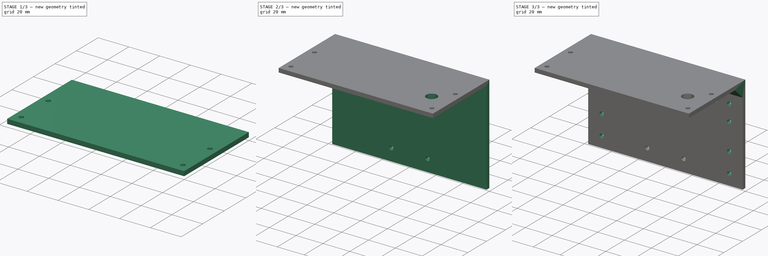
[diagram: build sequence overview — one tinted view per stage of 3, left to right]
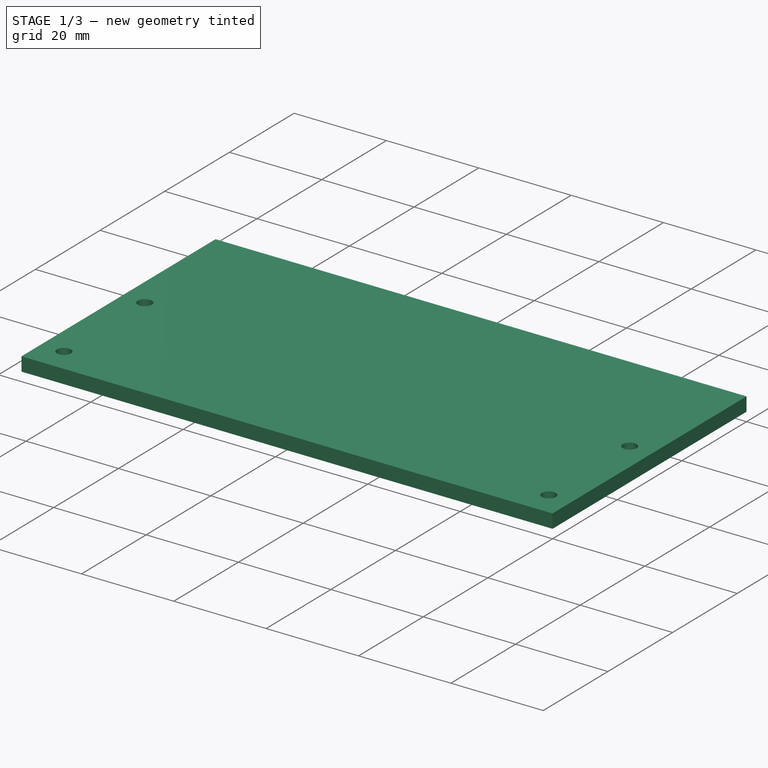
[diagram: stage 1 of 3 — iso view after this stage's code; geometry added in this stage tinted green]
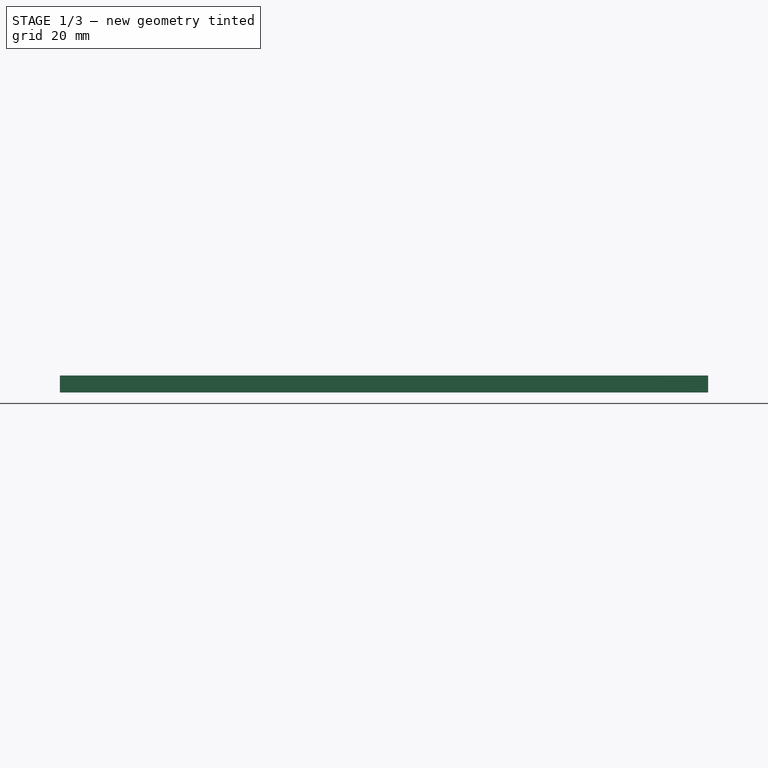
[diagram: stage 1 of 3 — front view after this stage's code; geometry added in this stage tinted green]
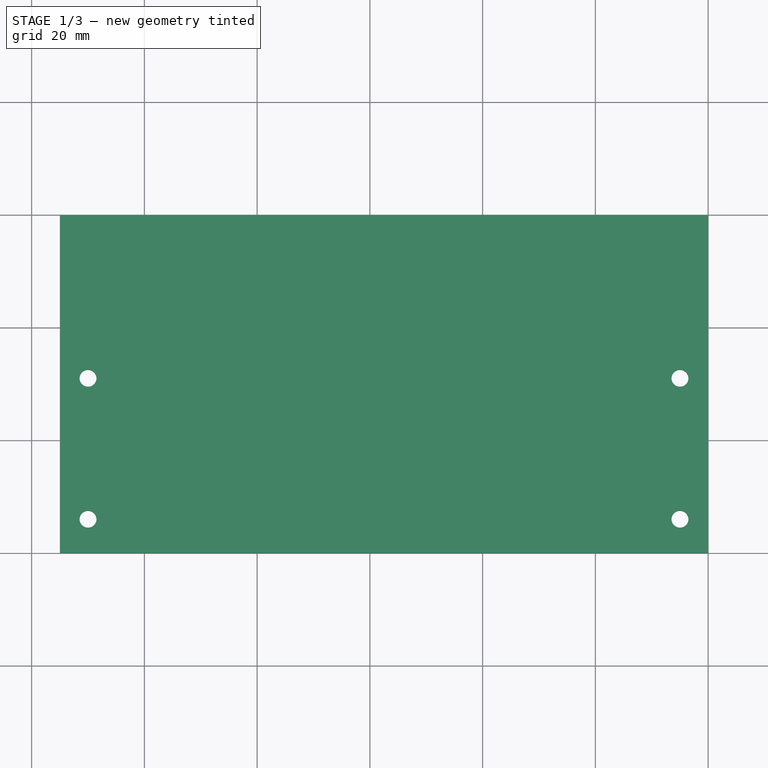
[diagram: stage 1 of 3 — top view after this stage's code; geometry added in this stage tinted green]
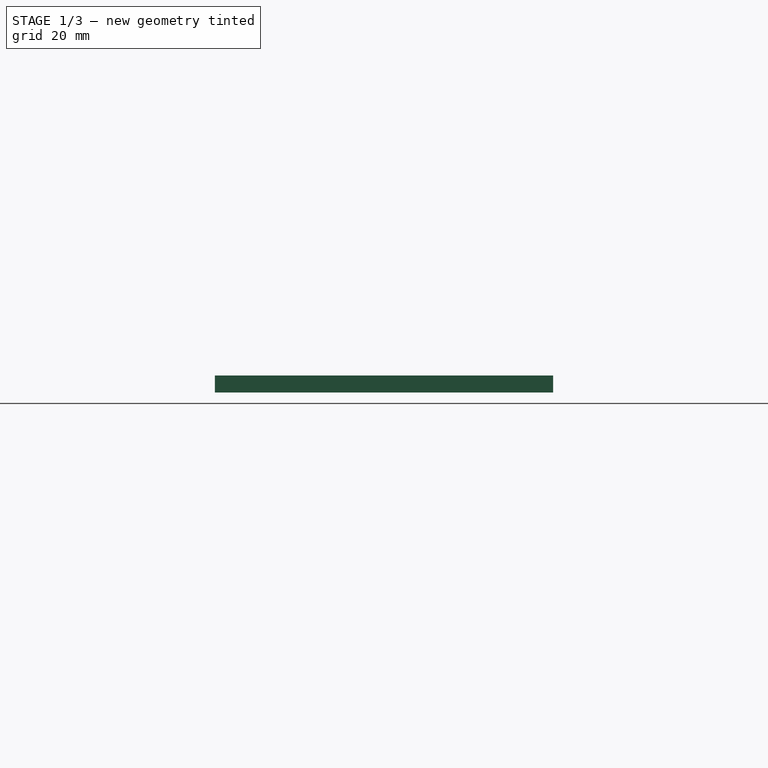
[diagram: stage 1 of 3 — right view after this stage's code; geometry added in this stage tinted green]
FCSTD DOCUMENT  (FreeCAD 0.16R6706 (Git))
Label: iROB-EA_ModuloPrincipal_Frontal
License: All rights reserved
LicenseURL: http://en.wikipedia.org/wiki/All_rights_reserved
objects: Sketcher::SketchObject×7, PartDesign::Pocket×4, PartDesign::Pad×3
note: 21 computed .brp shape members not serialized (recipe doc carries the construction recipe); baked Part::Feature solids carry a one-line shape summary decoded from their .brp

FEATURE [Sketcher::SketchObject] Sketch
  sketch-geometry (4):
    g0: LineSegment StartX=0 StartY=60 StartZ=0 EndX=-115 EndY=60 EndZ=0
    g1: LineSegment StartX=-115 StartY=60 StartZ=0 EndX=-115 EndY=0 EndZ=0
    g2: LineSegment StartX=-115 StartY=0 StartZ=0 EndX=0 EndY=0 EndZ=0
    g3: LineSegment StartX=0 StartY=0 StartZ=0 EndX=0 EndY=60 EndZ=0
  constraints (11):
    c: Coincident(g0,g1)
    c: Coincident(g1,g2)
    c: Coincident(g2,g3)
    c: Coincident(g3,g0)
    c: Horizontal(g0)
    c: Horizontal(g2)
    c: Vertical(g1)
    c: Vertical(g3)
    c: Coincident(g2,g-1)
    c: DistanceX(g2,g2) = 115
    c: DistanceY(g3,g3) = 60
FEATURE [PartDesign::Pad] Pad
  Length = 3
  Length2 = 100
  Sketch = -> Sketch
  Type = 0
FEATURE [Sketcher::SketchObject] Sketch001
  Placement = pos=(0,0,3) rot=(0,0,1;0rad)
  Support = -> Pad [Face6]
  sketch-geometry (4):
    g0: Circle CenterX=-5 CenterY=31 CenterZ=0 NormalX=0 NormalY=0 NormalZ=1 Radius=1.5
    g1: Circle CenterX=-110 CenterY=31 CenterZ=0 NormalX=0 NormalY=0 NormalZ=1 Radius=1.5
    g2: Circle CenterX=-110 CenterY=6 CenterZ=0 NormalX=0 NormalY=0 NormalZ=1 Radius=1.5
    g3: Circle CenterX=-5 CenterY=6 CenterZ=0 NormalX=0 NormalY=0 NormalZ=1 Radius=1.5
  constraints (12):
    c: Radius(g0) = 1.5
    c: Radius(g1) = 1.5
    c: DistanceX(g1,g0) = 105
    c: DistanceY(g0,g1) = 0
    c: Radius(g2) = 1.5
    c: DistanceX(g1,g2) = 0
    c: Radius(g3) = 1.5
    c: DistanceX(g3,g0) = 0
    c: DistanceY(g2,g3) = 0
    c: DistanceY(g2,g1) = 25
    c: DistanceY(g-1,g0) = 31
    c: DistanceX(g3,g-1) = 5
FEATURE [PartDesign::Pocket] Pocket
  Length = 5
  Sketch = -> Sketch001
  Type = 0
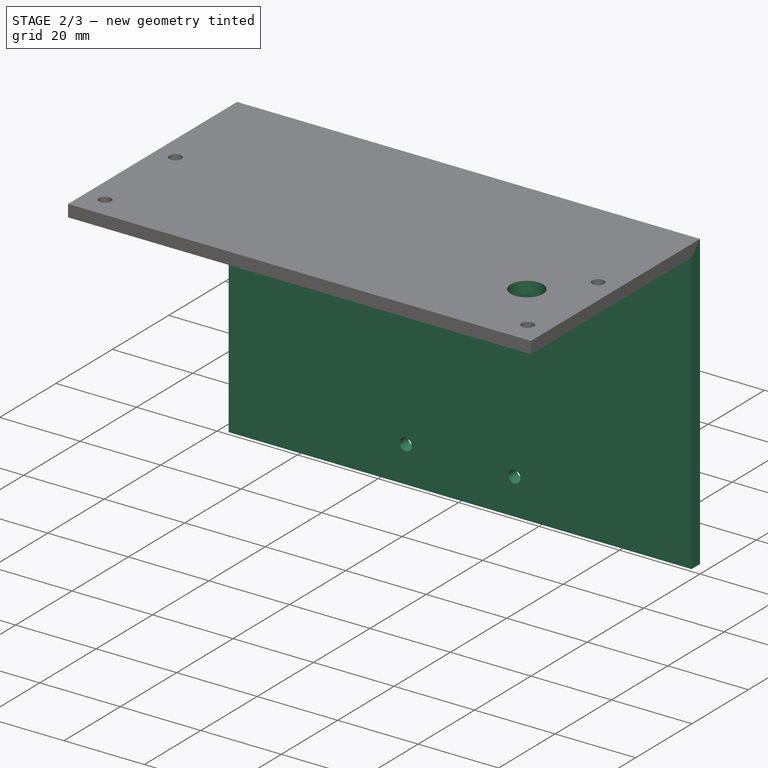
[diagram: stage 2 of 3 — iso view after this stage's code; geometry added in this stage tinted green]
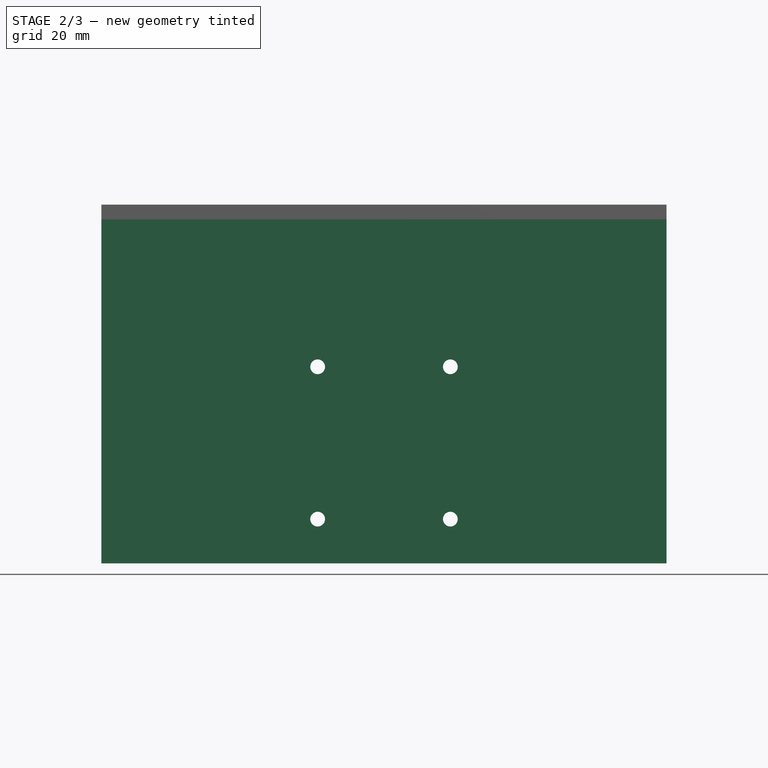
[diagram: stage 2 of 3 — front view after this stage's code; geometry added in this stage tinted green]
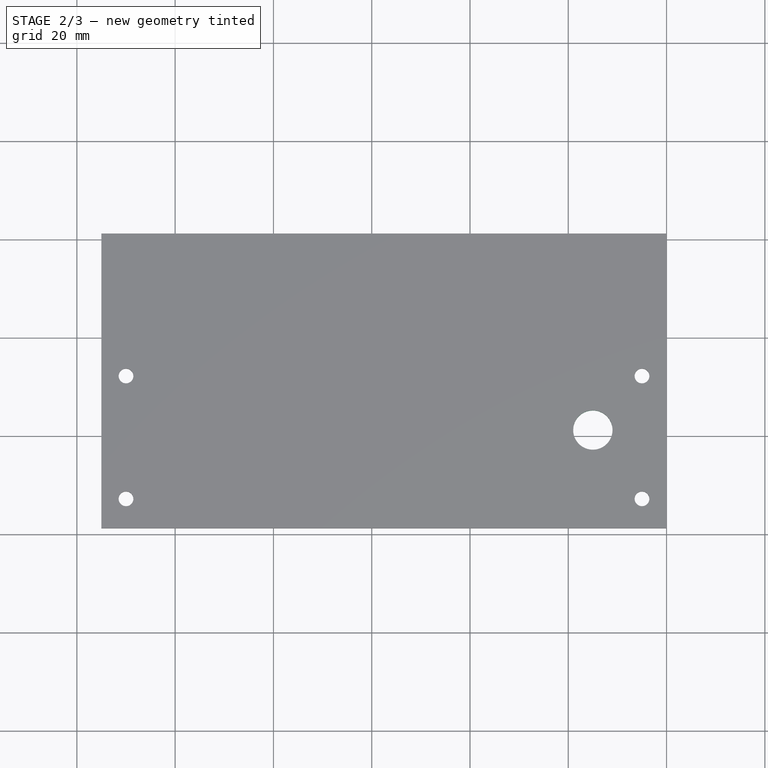
[diagram: stage 2 of 3 — top view after this stage's code; geometry added in this stage tinted green]
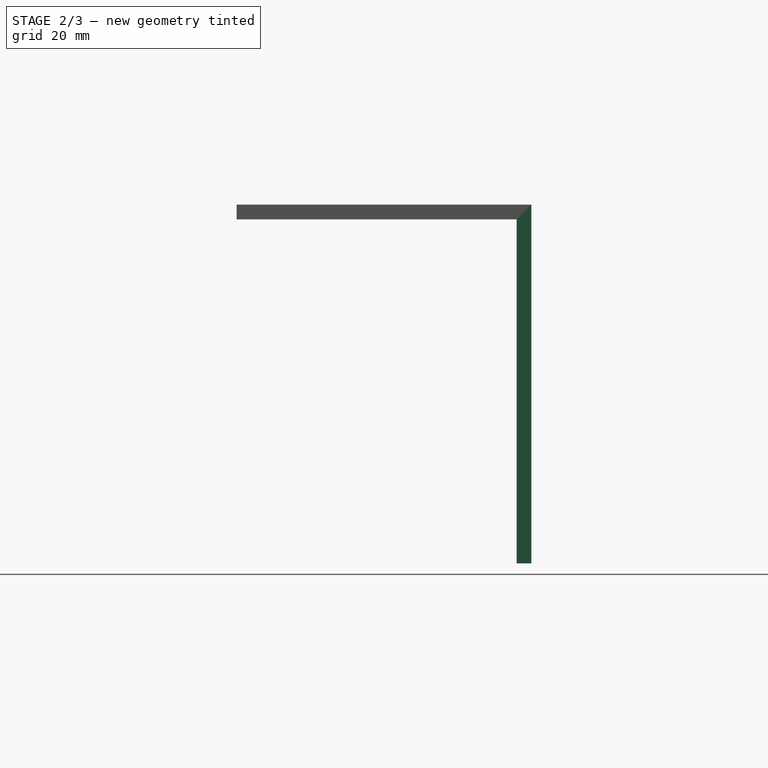
[diagram: stage 2 of 3 — right view after this stage's code; geometry added in this stage tinted green]
FEATURE [Sketcher::SketchObject] Sketch002
  Placement = pos=(0,0,3) rot=(0,0,1;0rad)
  Support = -> Pocket [Face5]
  sketch-geometry (1):
    g0: Circle CenterX=-15 CenterY=20 CenterZ=0 NormalX=0 NormalY=0 NormalZ=1 Radius=4
  constraints (3):
    c: Radius(g0) = 4
    c: DistanceY(g-1,g0) = 20
    c: DistanceX(g0,g-1) = 15
FEATURE [PartDesign::Pocket] Pocket001
  Length = 5
  Sketch = -> Sketch002
  Type = 0
FEATURE [Sketcher::SketchObject] Sketch003
  Placement = pos=(0,0,0) rot=(1,0,0;3.14159rad)
  Support = -> Pocket001 [Face4]
  sketch-geometry (4):
    g0: LineSegment StartX=-115 StartY=-57 StartZ=0 EndX=0 EndY=-57 EndZ=0
    g1: LineSegment StartX=0 StartY=-57 StartZ=0 EndX=0 EndY=-60 EndZ=0
    g2: LineSegment StartX=0 StartY=-60 StartZ=0 EndX=-115 EndY=-60 EndZ=0
    g3: LineSegment StartX=-115 StartY=-60 StartZ=0 EndX=-115 EndY=-57 EndZ=0
  constraints (12):
    c: Coincident(g0,g1)
    c: Coincident(g1,g2)
    c: Coincident(g2,g3)
    c: Coincident(g3,g0)
    c: Horizontal(g0)
    c: Horizontal(g2)
    c: Vertical(g1)
    c: Vertical(g3)
    c: DistanceY(g1,g1) = 3
    c: DistanceX(g0,g0) = 115
    c: DistanceX(g-1,g1) = 0
    c: DistanceY(g-1,g1) = -60
FEATURE [PartDesign::Pad] Pad001
  Length = 70
  Length2 = 100
  Sketch = -> Sketch003
  Type = 0
FEATURE [Sketcher::SketchObject] Sketch004
  Placement = pos=(0,57,0) rot=(1,0,0;1.5708rad)
  Support = -> Pad001 [Face9]
  sketch-geometry (4):
    g0: Circle CenterX=-71 CenterY=-30 CenterZ=0 NormalX=0 NormalY=0 NormalZ=1 Radius=1.5
    g1: Circle CenterX=-44 CenterY=-30 CenterZ=0 NormalX=0 NormalY=0 NormalZ=1 Radius=1.5
    g2: Circle CenterX=-71 CenterY=-61 CenterZ=0 NormalX=0 NormalY=0 NormalZ=1 Radius=1.5
    g3: Circle CenterX=-44 CenterY=-61 CenterZ=0 NormalX=0 NormalY=0 NormalZ=1 Radius=1.5
  constraints (12):
    c: Radius(g0) = 1.5
    c: Radius(g1) = 1.5
    c: DistanceX(g0,g1) = 27
    c: DistanceY(g0,g1) = 0
    c: Radius(g2) = 1.5
    c: Radius(g3) = 1.5
    c: DistanceX(g3,g1) = 0
    c: DistanceY(g3,g1) = 31
    c: DistanceY(g3,g2) = 0
    c: DistanceX(g2,g0) = 0
    c: DistanceX(g3,g-1) = 44
    c: DistanceY(g-1,g1) = -30
FEATURE [PartDesign::Pocket] Pocket002
  Length = 5
  Sketch = -> Sketch004
  Type = 0
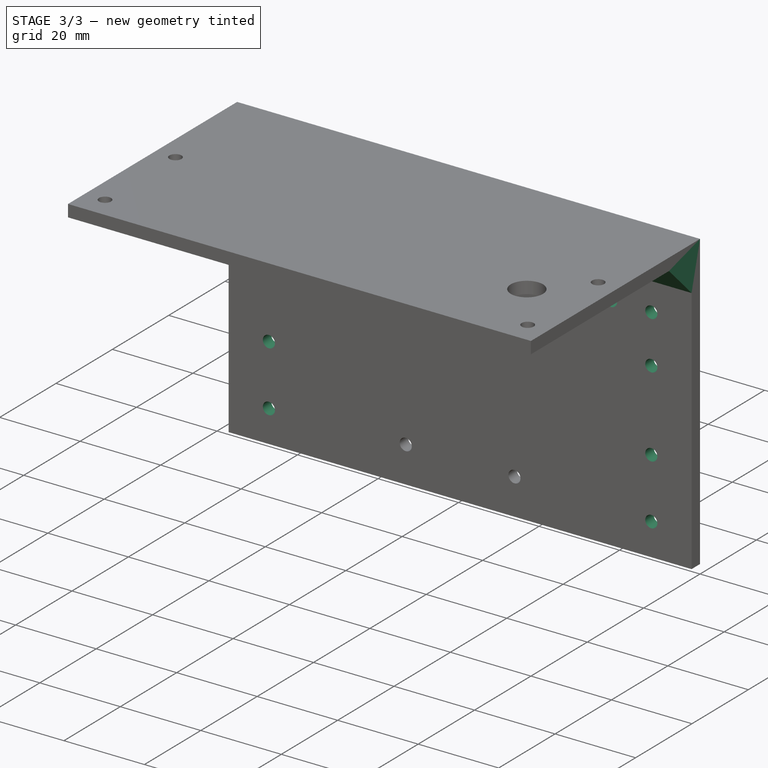
[diagram: stage 3 of 3 — iso view after this stage's code; geometry added in this stage tinted green]
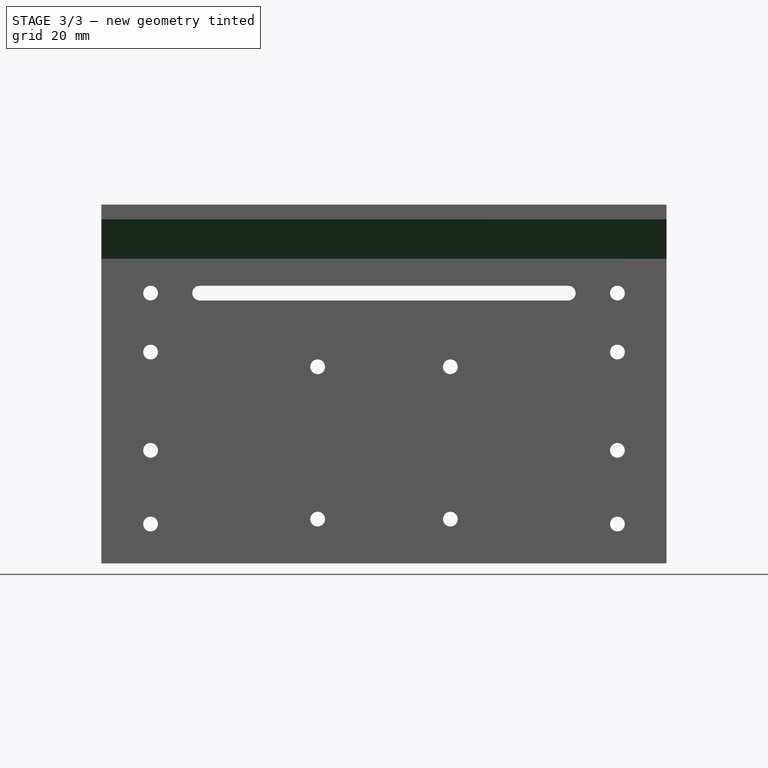
[diagram: stage 3 of 3 — front view after this stage's code; geometry added in this stage tinted green]
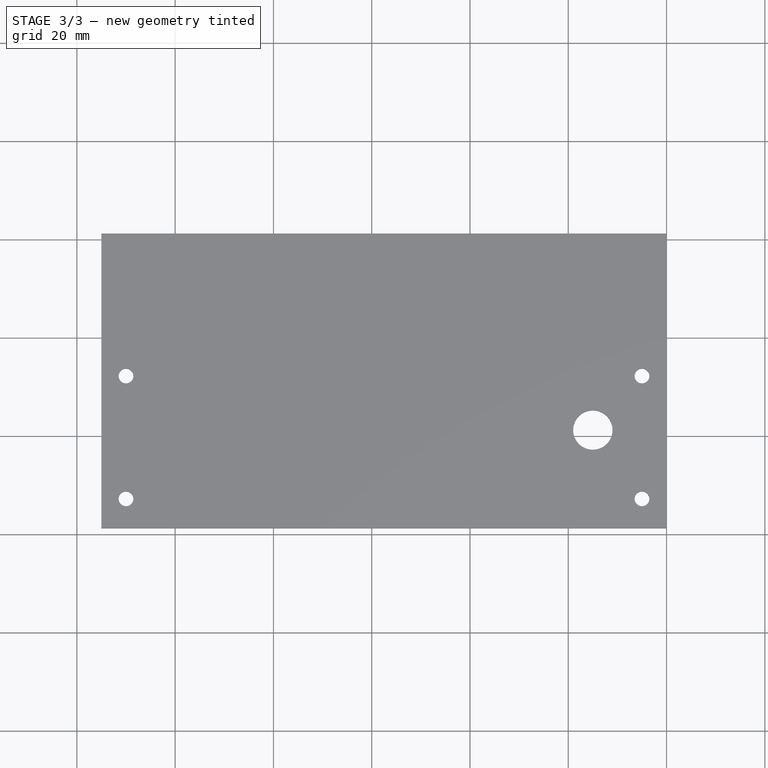
[diagram: stage 3 of 3 — top view after this stage's code; geometry added in this stage tinted green]
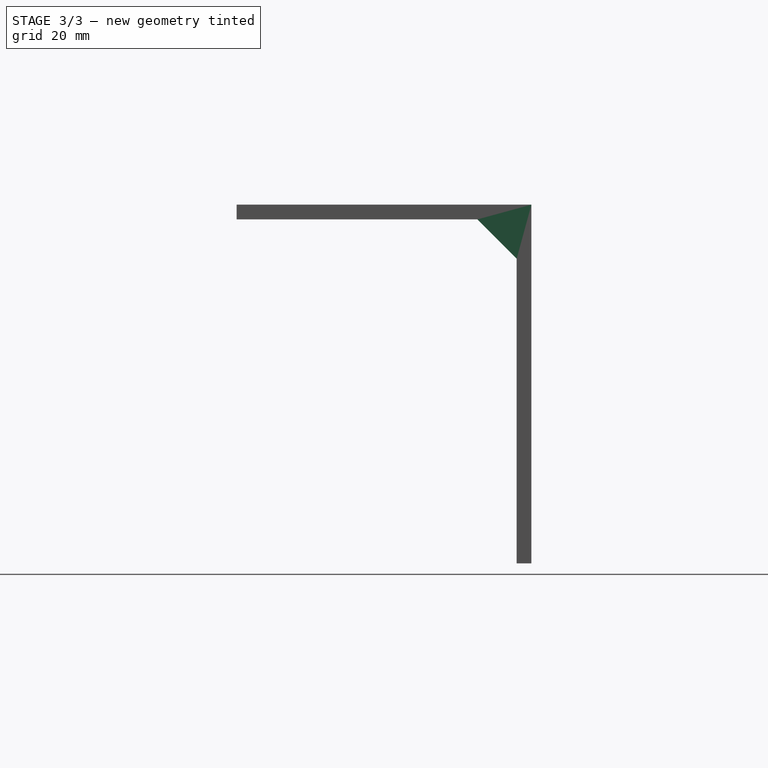
[diagram: stage 3 of 3 — right view after this stage's code; geometry added in this stage tinted green]
FEATURE [Sketcher::SketchObject] Sketch006
  Placement = pos=(0,0,0) rot=(0.57735,0.57735,0.57735;2.0944rad)
  Support = -> Pocket002 [Face3]
  sketch-geometry (3):
    g0: LineSegment StartX=57 StartY=0 StartZ=0 EndX=57 EndY=-8 EndZ=0
    g1: LineSegment StartX=57 StartY=-8 StartZ=0 EndX=49 EndY=0 EndZ=0
    g2: LineSegment StartX=49 StartY=0 StartZ=0 EndX=57 EndY=0 EndZ=0
  constraints (7):
    c: Coincident(g0,g1)
    c: Coincident(g1,g2)
    c: Coincident(g2,g0)
    c: Vertical(g0)
    c: Horizontal(g2)
    c: DistanceY(g0,g0) = 8
    c: DistanceX(g2,g2) = 8
FEATURE [PartDesign::Pad] Pad002
  Length = 115
  Length2 = 100
  Reversed = true
  Sketch = -> Sketch006
  Type = 0
FEATURE [Sketcher::SketchObject] Sketch007
  Placement = pos=(0,57,0) rot=(1,0,0;1.5708rad)
  Support = -> Pad002 [Face15]
  sketch-geometry (18):
    g0: Circle CenterX=-105 CenterY=-15 CenterZ=0 NormalX=0 NormalY=0 NormalZ=1 Radius=1.5
    g1: Circle CenterX=-105 CenterY=-27 CenterZ=0 NormalX=0 NormalY=0 NormalZ=1 Radius=1.5
    g2: Circle CenterX=-105 CenterY=-47 CenterZ=0 NormalX=0 NormalY=0 NormalZ=1 Radius=1.5
    g3: Circle CenterX=-105 CenterY=-62 CenterZ=0 NormalX=0 NormalY=0 NormalZ=1 Radius=1.5
    g4: LineSegment [constr] StartX=-105 StartY=-15 StartZ=0 EndX=-105 EndY=-27 EndZ=0
    g5: LineSegment [constr] StartX=-105 StartY=-27 StartZ=0 EndX=-105 EndY=-47 EndZ=0
    g6: LineSegment [constr] StartX=-105 StartY=-47 StartZ=0 EndX=-105 EndY=-62 EndZ=0
    g7: Circle CenterX=-10 CenterY=-15 CenterZ=0 NormalX=0 NormalY=0 NormalZ=1 Radius=1.5
    g8: Circle CenterX=-10 CenterY=-27 CenterZ=0 NormalX=0 NormalY=0 NormalZ=1 Radius=1.5
    g9: Circle CenterX=-10 CenterY=-47 CenterZ=0 NormalX=0 NormalY=0 NormalZ=1 Radius=1.5
    g10: Circle CenterX=-10 CenterY=-62 CenterZ=0 NormalX=0 NormalY=0 NormalZ=1 Radius=1.5
    g11: LineSegment [constr] StartX=-10 StartY=-15 StartZ=0 EndX=-10 EndY=-27 EndZ=0
    g12: LineSegment [constr] StartX=-10 StartY=-27 StartZ=0 EndX=-10 EndY=-47 EndZ=0
    g13: LineSegment [constr] StartX=-10 StartY=-47 StartZ=0 EndX=-10 EndY=-62 EndZ=0
    g14: ArcOfCircle CenterX=-95 CenterY=-15 CenterZ=0 NormalX=0 NormalY=0 NormalZ=1 Radius=1.5 StartAngle=1.5708 EndAngle=4.71239
    g15: ArcOfCircle CenterX=-20 CenterY=-15 CenterZ=0 NormalX=0 NormalY=0 NormalZ=1 Radius=1.5 StartAngle=4.71239 EndAngle=7.85398
    g16: LineSegment StartX=-95 StartY=-16.5 StartZ=0 EndX=-20 EndY=-16.5 EndZ=0
    g17: LineSegment StartX=-95 StartY=-13.5 StartZ=0 EndX=-20 EndY=-13.5 EndZ=0
  constraints (42):
    c: Radius(g0) = 1.5
    c: Radius(g1) = 1.5
    c: Radius(g2) = 1.5
    c: Radius(g3) = 1.5
    c: Vertical(g4)
    c: Coincident(g4,g0)
    c: Coincident(g4,g1)
    c: Coincident(g5,g1)
    c: Coincident(g2,g5)
    c: Coincident(g2,g6)
    c: Vertical(g5)
    c: Vertical(g6)
    c: Coincident(g3,g6)
    c: DistanceY(g1,g0) = 12
    c: DistanceY(g2,g1) = 20
    c: DistanceY(g3,g2) = 15
    c: DistanceX(g0,g-1) = 105
    c: DistanceY(g-1,g0) = -15
    c: Radius(g7) = 1.5
    c: Radius(g8) = 1.5
    c: Radius(g9) = 1.5
    c: Radius(g10) = 1.5
    c: Vertical(g11)
    c: Coincident(g11,g7)
    c: Coincident(g11,g8)
    c: Coincident(g12,g8)
    c: Coincident(g9,g12)
    c: Coincident(g9,g13)
    c: Vertical(g12)
    c: Vertical(g13)
    c: Coincident(g10,g13)
    c: DistanceX(g7,g-1) = 10
    c: Tangent(g14,g17) = 1.5708
    c: Tangent(g14,g16) = -1.5708
    c: Tangent(g16,g15) = -1.5708
    c: Tangent(g17,g15) = 1.5708
    c: Horizontal(g16)
    c: Equal(g14,g15)
    c: DistanceY(g14,g14) = 1.5
    c: DistanceX(g17,g17) = 75
    c: DistanceX(g0,g14) = 10
    c: DistanceY(g0,g14) = 0
FEATURE [PartDesign::Pocket] Pocket003
  Length = 5
  Sketch = -> Sketch007
  Type = 0
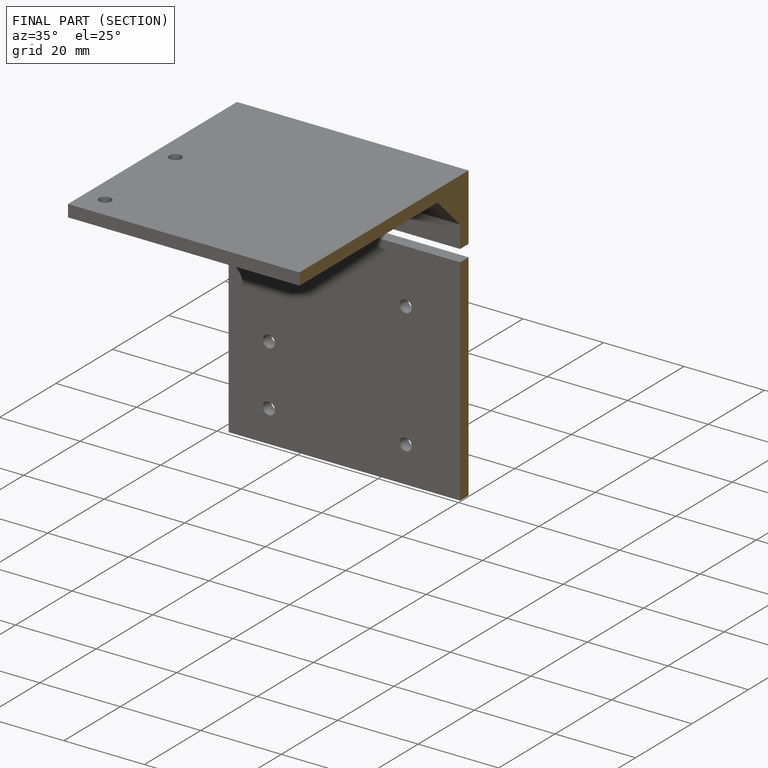
[diagram: finished part — half-section view (interior)]
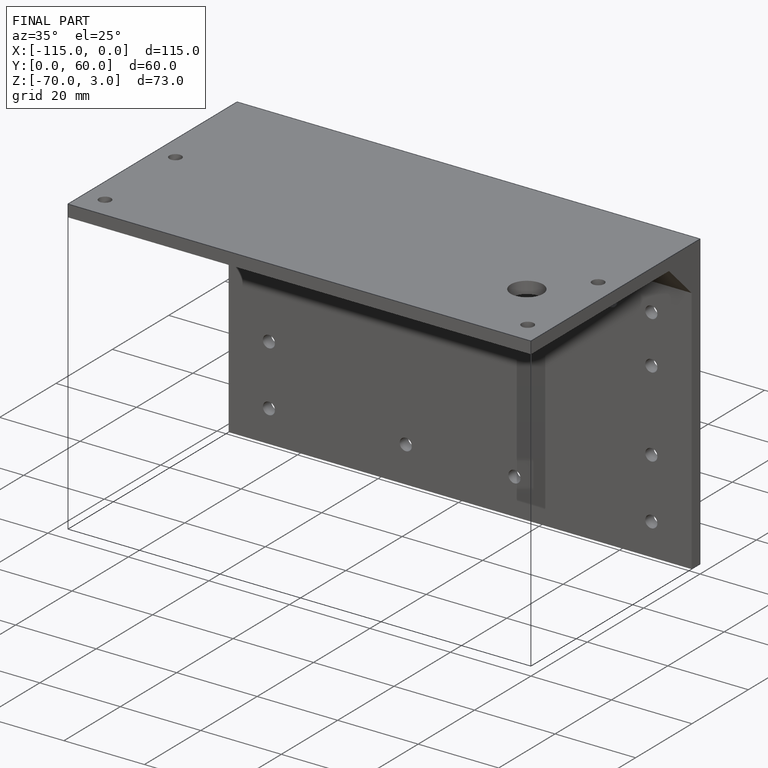
[diagram: finished part — iso view with bounding-box wireframe]
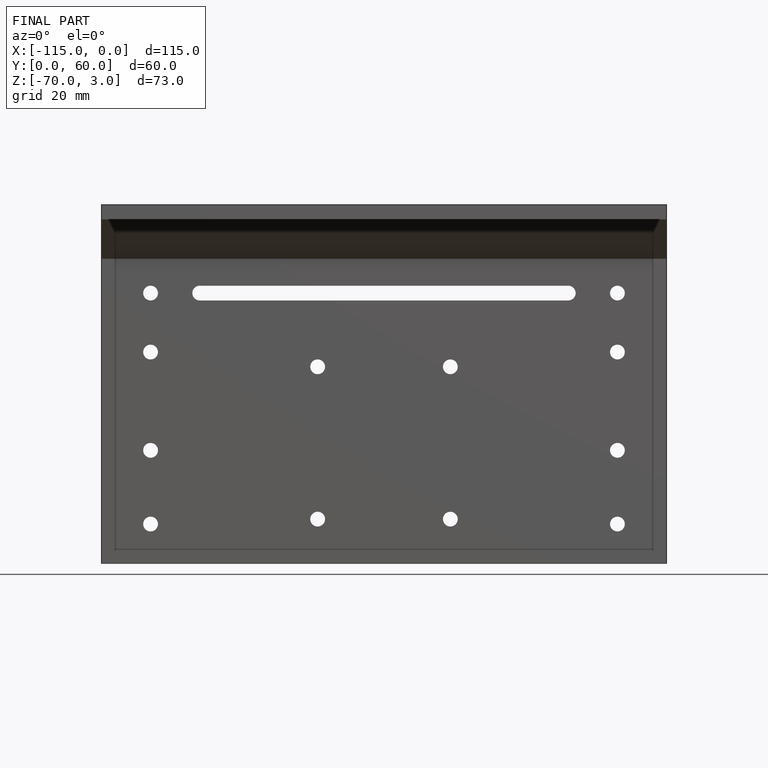
[diagram: finished part — front view with bounding-box wireframe]
